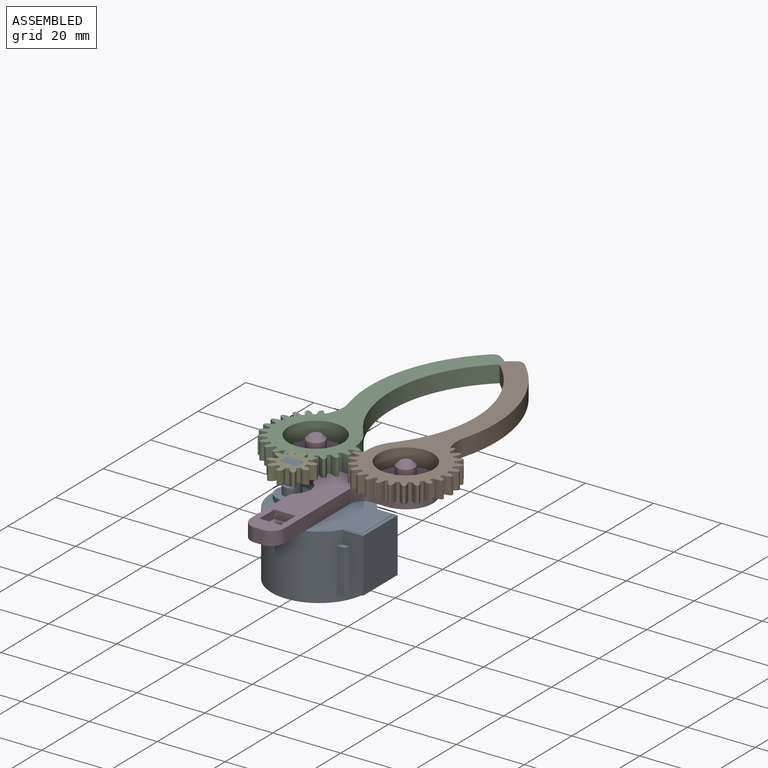
[diagram: assembled view]
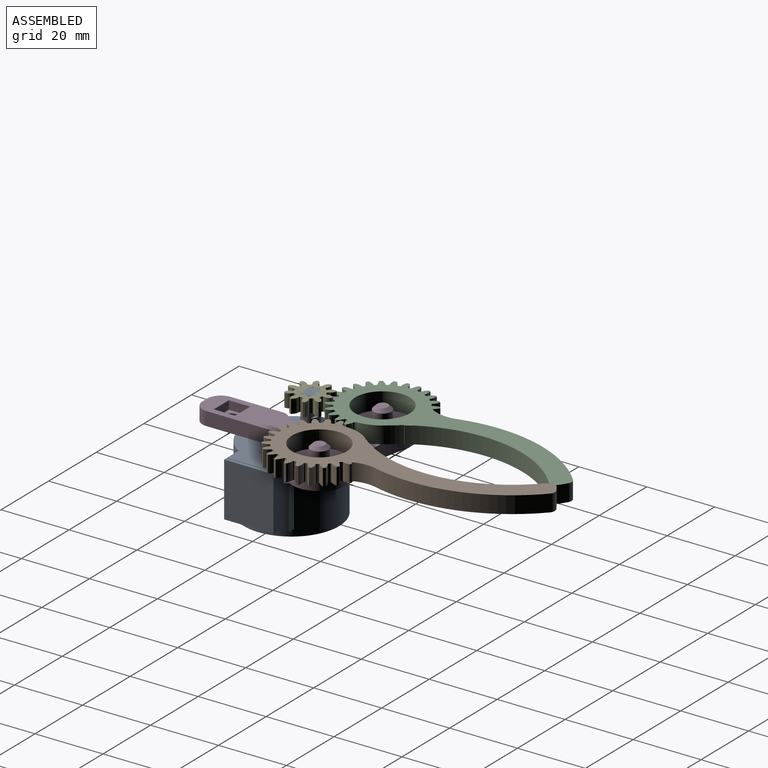
[diagram: assembled view, second angle]
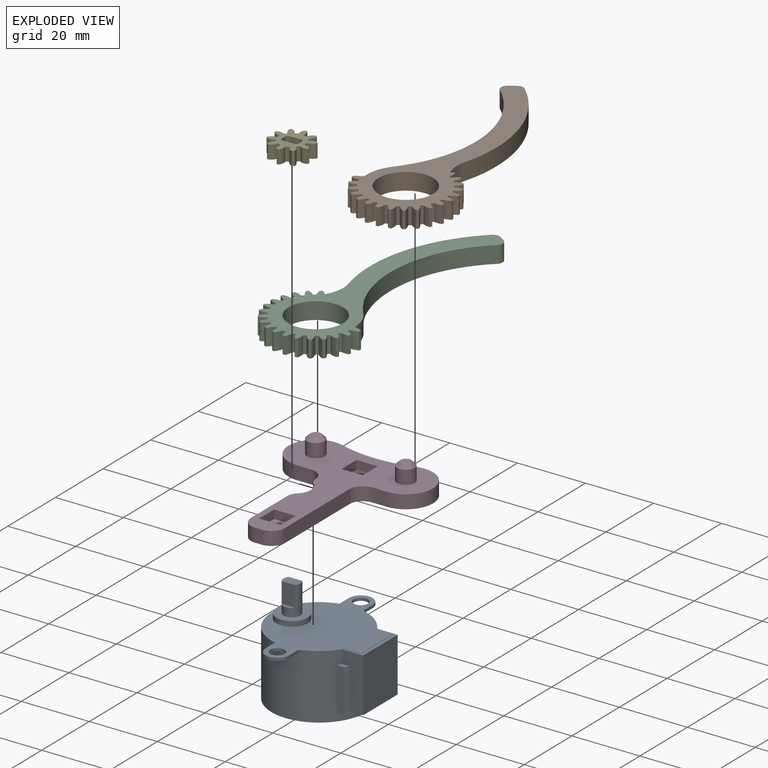
[diagram: exploded view]
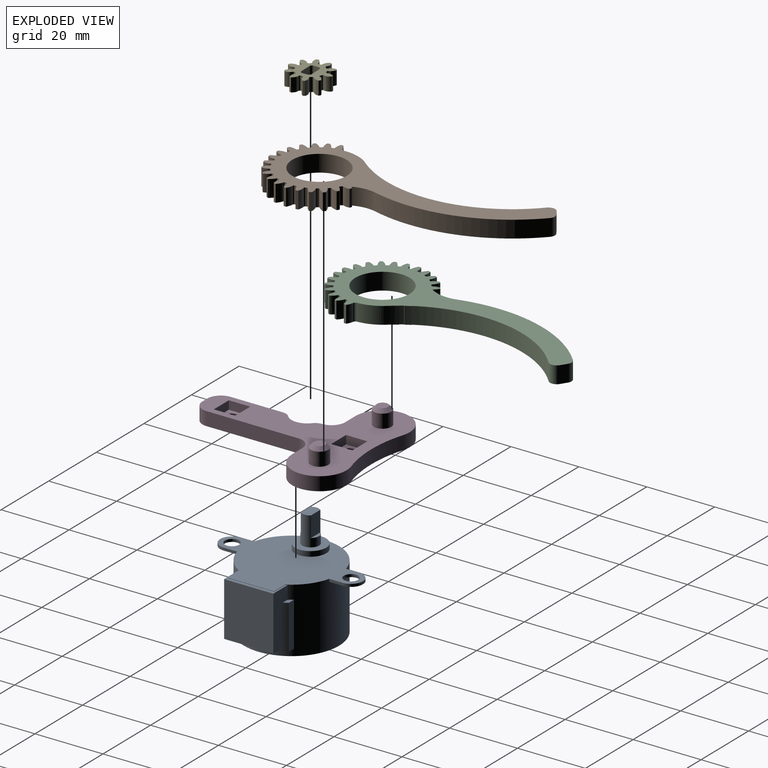
[diagram: exploded view, second angle]
FCSTD DOCUMENT  (FreeCAD 1.0R39109 (Git))
Label: Canapince
License: All rights reserved
LicenseURL: https://en.wikipedia.org/wiki/All_rights_reserved
objects: App::FeaturePython×7, App::Link×5, Assembly::JointGroup×1, Assembly::AssemblyObject×1
EXTERNAL_REF file=PinceV1.FCStd obj=Body
EXTERNAL_REF file=28BYJ-48-stepper.FCStd obj=Part
EXTERNAL_REF file=pignon.FCStd obj=Body
EXTERNAL_REF file=BrasV1_L.FCStd obj=Body
EXTERNAL_REF file=BrasV1_R.FCStd obj=Body

FEATURE [App::Link] partie_fixe
  LinkedObject = -> <external PinceV1.FCStd>#Body
FEATURE [App::FeaturePython] GroundedJoint  # Assembly grounded joint (typed FeaturePython)
  ObjectToGround = -> partie_fixe
FEATURE [App::Link] _8BYJ_48  label="28BYJ_48"
  LinkPlacement = pos=(-2.7e-15,-60.5051,7e-16) rot=(0.57735,0.57735,-0.57735;4.18879rad)
  LinkedObject = -> <external 28BYJ-48-stepper.FCStd>#Part
  Placement = pos=(-2.7e-15,-60.5051,7e-16) rot=(0.57735,0.57735,-0.57735;4.18879rad)
FEATURE [App::Link] pignon
  LinkPlacement = pos=(-8,-60.5051,10) rot=(0.696444,0.717611,0;3.14159rad)
  LinkedObject = -> <external pignon.FCStd>#Body
  Placement = pos=(-8,-60.5051,10) rot=(0.696444,0.717611,0;3.14159rad)
FEATURE [App::FeaturePython] Joint001  label="Revolute001"  # Assembly joint (typed FeaturePython)
  Activated = true
  AngleMax = 90
  AngleMin = 90
  Detach1 = false
  Detach2 = false
  Distance = 0
  Distance2 = 0
  EnableAngleMax = true
  EnableAngleMin = true
  EnableLengthMax = false
  EnableLengthMin = false
  JointType = 1 (Revolute)
  LengthMax = 0
  LengthMin = 0
  Placement1 = pos=(0,-78.0051,0) rot=(0,0,1;0rad)
  Placement2 = pos=(-17.5,0,-1e-16) rot=(1,0,0;1.5708rad)
  Reference1 = -> Assembly [partie_fixe.Edge79,partie_fixe.Edge79]
  Reference2 = -> Assembly [_8BYJ_48.Body.Edge34,_8BYJ_48.Body.Edge34]
FEATURE [App::FeaturePython] Joint004  label="Revolute003"  # Assembly joint (typed FeaturePython)
  Activated = true
  AngleMax = 0
  AngleMin = 0
  Detach1 = false
  Detach2 = false
  Distance = 0
  Distance2 = 0
  EnableAngleMax = false
  EnableAngleMin = false
  EnableLengthMax = false
  EnableLengthMin = false
  JointType = 1 (Revolute)
  LengthMax = 0
  LengthMin = 0
  Placement1 = pos=(0,-10,8) rot=(1,0,0;1.5708rad)
  Reference1 = -> Assembly [_8BYJ_48.Body.Edge12,_8BYJ_48.Body.Edge12]
  Reference2 = -> Assembly [pignon.Face1,pignon.Face1]
FEATURE [App::Link] bras_L
  LinkPlacement = pos=(-24.3939,-12.6087,6.5) rot=(-0.28418,0.958771,0;3.14159rad)
  LinkedObject = -> <external BrasV1_L.FCStd>#Body
  Placement = pos=(-24.3939,-12.6087,6.5) rot=(-0.28418,0.958771,0;3.14159rad)
FEATURE [App::Link] bras_R
  LinkPlacement = pos=(24.3835,-12.5958,6.5) rot=(0,0,-1;0.575959rad)
  LinkedObject = -> <external BrasV1_R.FCStd>#Body
  Placement = pos=(24.3835,-12.5958,6.5) rot=(0,0,-1;0.575959rad)
FEATURE [App::FeaturePython] Joint  label="Pivot"  # Assembly joint (typed FeaturePython)
  Activated = true
  AngleMax = 33
  AngleMin = -75
  Detach1 = false
  Detach2 = false
  Distance = 0
  Distance2 = 0
  EnableAngleMax = true
  EnableAngleMin = true
  EnableLengthMax = false
  EnableLengthMin = false
  JointType = 1 (Revolute)
  LengthMax = 0
  LengthMin = 0
  Placement1 = pos=(-15,-46,-2.5) rot=(0,0,1;0rad)
  Placement2 = pos=(-13.25,-43.0051,4) rot=(0,0,1;0rad)
  Reference1 = -> Assembly [bras_R.Edge290,bras_R.Edge290]
  Reference2 = -> Assembly [partie_fixe.Edge21,partie_fixe.Edge21]
FEATURE [App::FeaturePython] Joint005  label="Pivot001"  # Assembly joint (typed FeaturePython)
  Activated = true
  AngleMax = 10
  AngleMin = -10
  Detach1 = false
  Detach2 = false
  Distance = 0
  Distance2 = 0
  EnableAngleMax = false
  EnableAngleMin = false
  EnableLengthMax = false
  EnableLengthMin = false
  JointType = 1 (Revolute)
  LengthMax = 0
  LengthMin = 0
  Placement1 = pos=(-15,-46,2.5) rot=(0,0,1;0rad)
  Placement2 = pos=(13.25,-43.0051,4) rot=(0,0,1;0rad)
  Reference1 = -> Assembly [bras_L.Pocket001.Edge662,bras_L.Pocket001.Edge662]
  Reference2 = -> Assembly [partie_fixe.Fillet001.Edge26,partie_fixe.Fillet001.Edge26]
FEATURE [App::FeaturePython] Joint007  label="Courroie001"  # Assembly joint (typed FeaturePython)
  Activated = true
  AngleMax = 10
  AngleMin = -10
  Detach1 = false
  Detach2 = false
  Distance = 10
  Distance2 = 10
  EnableAngleMax = false
  EnableAngleMin = false
  EnableLengthMax = false
  EnableLengthMin = false
  JointType = 12 (Belt)
  LengthMax = 0
  LengthMin = 0
  Placement1 = pos=(-15,-46,2.5) rot=(0,0,1;0rad)
  Placement2 = pos=(-15,-46,-2.5) rot=(0,0,1;0rad)
  Reference1 = -> Assembly [bras_R.Pocket001.Edge686,bras_R.Pocket001.Edge686]
  Reference2 = -> Assembly [bras_L.Pocket001.Edge289,bras_L.Pocket001.Edge289]
FEATURE [App::FeaturePython] Joint008  label="Courroie"  # Assembly joint (typed FeaturePython)
  Activated = true
  AngleMax = 20
  AngleMin = -20
  Detach1 = false
  Detach2 = false
  Distance = 10
  Distance2 = 26
  EnableAngleMax = false
  EnableAngleMin = false
  EnableLengthMax = false
  EnableLengthMin = false
  JointType = 12 (Belt)
  LengthMax = 9
  LengthMin = 0
  Placement2 = pos=(-15,-46,2.5) rot=(0,0,1;0rad)
  Reference1 = -> Assembly [pignon.Fillet.Face1,pignon.Fillet.Face1]
  Reference2 = -> Assembly [bras_R.Pocket001.Edge686,bras_R.Pocket001.Edge686]
FEATURE [Assembly::JointGroup] Joints
  Group = -> [GroundedJoint,Joint001,Joint004,Joint,Joint005,Joint007,Joint008]
FEATURE [Assembly::AssemblyObject] Assembly
  Group = -> [Joints,partie_fixe,GroundedJoint,_8BYJ_48,pignon,Joint001,Joint004,bras_L,bras_R,Joint,Joint005,Joint007,Joint008]
  Origin = -> Origin
  Placement = pos=(0,0,154) rot=(0,0,1;0rad)
  Type = Assembly

RESOLVED EXTERNAL PARTS (link-assembly join: the EXTERNAL_REF files above that resolve inside this repo's crawl, each included once):
---- part 28BYJ-48-stepper.FCStd = doc fcstd_d44b789bbfa6 ----
FCSTD DOCUMENT  (FreeCAD 1.0R39109 (Git))
Label: 28BYJ-48-stepper
License: All rights reserved
LicenseURL: http://en.wikipedia.org/wiki/All_rights_reserved
objects: Sketcher::SketchObject×9, PartDesign::Pad×8, PartDesign::CoordinateSystem×4, PartDesign::Mirrored×2, PartDesign::Plane×1, PartDesign::Pocket×1, PartDesign::Body×1, App::Part×1
note: 55 computed .brp shape members not serialized (recipe doc carries the construction recipe); baked Part::Feature solids carry a one-line shape summary decoded from their .brp

FEATURE [Sketcher::SketchObject] Sketch
  ArcFitTolerance = 0
  AttachmentSupport = -> [XZ_Plane001]
  FullyConstrained = true
  MakeInternals = false
  MapMode = 5
  Placement = pos=(0,0,0) rot=(1,0,0;1.5708rad)
  sketch-geometry (1):
    g0: Circle CenterX=0 CenterY=0 CenterZ=0 NormalX=0 NormalY=0 NormalZ=1 AngleXU=0 Radius=14
  constraints (2):
    c: Coincident(g0,g-1)
    c: Diameter(g0) = 28
FEATURE [PartDesign::Pad] Pad
  Direction = (0,-1,2e-16)
  Length = 19
  Length2 = 100
  Placement = pos=(0,0,0) rot=(1,0,0;1.5708rad)
  Profile = -> Sketch
  ReferenceAxis = -> Sketch [N_Axis]
  Reversed = true
  Suppressed = false
  Type = 0
FEATURE [Sketcher::SketchObject] Sketch001
  ArcFitTolerance = 0
  AttachmentSupport = -> [Pad]
  ExternalGeometry = -> [Pad]
  FullyConstrained = true
  MakeInternals = false
  MapMode = 5
  Placement = pos=(0,0,0) rot=(1,0,0;1.5708rad)
  sketch-geometry (4):
    g0: LineSegment StartX=-7.25 StartY=-11.9765 StartZ=0 EndX=7.25 EndY=-11.9765 EndZ=0
    g1: LineSegment StartX=7.25 StartY=-11.9765 StartZ=0 EndX=7.25 EndY=-18 EndZ=0
    g2: LineSegment StartX=7.25 StartY=-18 StartZ=0 EndX=-7.25 EndY=-18 EndZ=0
    g3: LineSegment StartX=-7.25 StartY=-18 StartZ=0 EndX=-7.25 EndY=-11.9765 EndZ=0
  constraints (11):
    c: Coincident(g0,g1)
    c: Coincident(g1,g2)
    c: Coincident(g2,g3)
    c: Coincident(g3,g0)
    c: Horizontal(g0)
    c: Vertical(g1)
    c: Vertical(g3)
    c: PointOnObject(g0,g-3)
    c: Symmetric(g2,g1,g-2)
    c: DistanceX(g2,g2) = 14.5
    c: DistanceY(g1,g-1) = 18
FEATURE [PartDesign::Pad] Pad001
  BaseFeature = -> Pad
  Direction = (0,-1,2e-16)
  Length = 16
  Length2 = 100
  Placement = pos=(0,0,0) rot=(1,0,0;1.5708rad)
  Profile = -> Sketch001
  ReferenceAxis = -> Sketch001 [N_Axis]
  Refine = true
  Reversed = true
  Suppressed = false
  Type = 0
FEATURE [Sketcher::SketchObject] Sketch002
  ArcFitTolerance = 0
  AttachmentSupport = -> [Pad001]
  ExternalGeometry = -> [Pad001]
  FullyConstrained = true
  MakeInternals = false
  MapMode = 5
  Placement = pos=(0,0,0) rot=(1,0,0;1.5708rad)
  sketch-geometry (5):
    g0: Circle CenterX=-17.5 CenterY=-1e-16 CenterZ=0 NormalX=0 NormalY=0 NormalZ=1 AngleXU=0 Radius=2.1
    g1: ArcOfCircle CenterX=-17.5 CenterY=-1e-16 CenterZ=0 NormalX=0 NormalY=0 NormalZ=1 AngleXU=0 Radius=3.5 StartAngle=1.5708 EndAngle=4.71239
    g2: LineSegment StartX=-17.5 StartY=3.5 StartZ=0 EndX=-13.5554 EndY=3.5 EndZ=0
    g3: LineSegment StartX=-13.5554 StartY=3.5 StartZ=0 EndX=-13.5554 EndY=-3.5 EndZ=0
    g4: LineSegment StartX=-13.5554 StartY=-3.5 StartZ=0 EndX=-17.5 EndY=-3.5 EndZ=0
  constraints (14):
    c: Coincident(g1,g0)
    c: Symmetric(g1,g1,g-1)
    c: Vertical(g1,g0)
    c: Coincident(g2,g1)
    c: Horizontal(g2)
    c: Coincident(g3,g2)
    c: Vertical(g3)
    c: Coincident(g4,g3)
    c: Coincident(g4,g1)
    c: Horizontal(g4)
    c: PointOnObject(g2,g-3)
    c: Diameter(g0) = 4.2
    c: Radius(g1) = 3.5
    c: DistanceX(g0,g-1) = 17.5
FEATURE [PartDesign::Pad] Pad002
  BaseFeature = -> Pad001
  Direction = (0,-1,2e-16)
  Length = 0.8
  Length2 = 100
  Placement = pos=(0,0,0) rot=(1,0,0;1.5708rad)
  Profile = -> Sketch002
  ReferenceAxis = -> Sketch002 [N_Axis]
  Refine = true
  Reversed = true
  Suppressed = false
  Type = 0
FEATURE [PartDesign::Mirrored] Mirrored
  BaseFeature = -> Pad002
  MirrorPlane = -> Sketch002 [V_Axis]
  Originals = -> [Pad002]
  Placement = pos=(0,0,0) rot=(1,0,0;1.5708rad)
  Refine = true
  Suppressed = false
  TransformMode = 0
FEATURE [Sketcher::SketchObject] Sketch003
  ArcFitTolerance = 0
  AttachmentSupport = -> [Mirrored]
  FullyConstrained = true
  MakeInternals = false
  MapMode = 5
  Placement = pos=(0,0,0) rot=(1,0,0;1.5708rad)
  sketch-geometry (1):
    g0: Circle CenterX=0 CenterY=8 CenterZ=0 NormalX=0 NormalY=0 NormalZ=1 AngleXU=0 Radius=4.6
  constraints (3):
    c: PointOnObject(g0,g-2)
    c: Diameter(g0) = 9.2
    c: DistanceY(g-1,g0) = 8
FEATURE [PartDesign::Pad] Pad003
  BaseFeature = -> Mirrored
  Direction = (0,-1,2e-16)
  Length = 1.5
  Length2 = 100
  Placement = pos=(0,0,0) rot=(1,0,0;1.5708rad)
  Profile = -> Sketch003
  ReferenceAxis = -> Sketch003 [N_Axis]
  Suppressed = false
  Type = 0
FEATURE [Sketcher::SketchObject] Sketch004
  ArcFitTolerance = 0
  AttachmentSupport = -> [Pad003]
  ExternalGeometry = -> [Pad003]
  FullyConstrained = true
  MakeInternals = false
  MapMode = 5
  Placement = pos=(0,-1.5,0) rot=(1,0,0;1.5708rad)
  sketch-geometry (1):
    g0: Circle CenterX=0 CenterY=8 CenterZ=0 NormalX=0 NormalY=0 NormalZ=1 AngleXU=0 Radius=2.5
  constraints (2):
    c: Coincident(g0,g-3)
    c: Diameter(g0) = 5
FEATURE [PartDesign::Pad] Pad004
  BaseFeature = -> Pad003
  Direction = (0,-1,2e-16)
  Length = 2.5
  Length2 = 100
  Placement = pos=(0,0,0) rot=(1,0,0;1.5708rad)
  Profile = -> Sketch004
  ReferenceAxis = -> Sketch004 [N_Axis]
  Suppressed = false
  Type = 0
FEATURE [Sketcher::SketchObject] Sketch005
  ArcFitTolerance = 0
  AttachmentSupport = -> [Pad004]
  ExternalGeometry = -> [Pad004]
  FullyConstrained = true
  MakeInternals = false
  MapMode = 5
  Placement = pos=(0,-4,0) rot=(1,0,0;1.5708rad)
  sketch-geometry (4):
    g0: LineSegment StartX=-1.5 StartY=10 StartZ=0 EndX=-1.5 EndY=6 EndZ=0
    g1: LineSegment StartX=1.5 StartY=10 StartZ=0 EndX=1.5 EndY=6 EndZ=0
    g2: ArcOfCircle CenterX=0 CenterY=8 CenterZ=0 NormalX=0 NormalY=0 NormalZ=1 AngleXU=0 Radius=2.5 StartAngle=0.927295 EndAngle=2.2143
    g3: ArcOfCircle CenterX=0 CenterY=8 CenterZ=0 NormalX=0 NormalY=0 NormalZ=1 AngleXU=0 Radius=2.5 StartAngle=4.06889 EndAngle=5.35589
  constraints (12):
    c: PointOnObject(g0,g-3)
    c: PointOnObject(g0,g-3)
    c: Vertical(g0)
    c: Vertical(g1)
    c: Coincident(g2,g-3)
    c: Coincident(g2,g0)
    c: Coincident(g2,g1)
    c: Coincident(g3,g2)
    c: Coincident(g3,g0)
    c: Coincident(g3,g1)
    c: DistanceX(g0,g1) = 3
    c: Horizontal(g0,g1)
FEATURE [PartDesign::Pad] Pad005
  BaseFeature = -> Pad004
  Direction = (0,-1,2e-16)
  Length = 6
  Length2 = 100
  Placement = pos=(0,0,0) rot=(1,0,0;1.5708rad)
  Profile = -> Sketch005
  ReferenceAxis = -> Sketch005 [N_Axis]
  Refine = true
  Suppressed = false
  Type = 0
FEATURE [PartDesign::Plane] DatumPlane
  AttachmentOffset = pos=(0,0,-4) rot=(0,0,1;0rad)
  AttachmentSupport = -> [Pad005]
  Length = 60
  MapMode = 2
  Placement = pos=(0,4,-9e-16) rot=(1,0,0;1.5708rad)
  ResizeMode = 0
  Width = 60
FEATURE [Sketcher::SketchObject] Sketch006
  ArcFitTolerance = 0
  AttachmentSupport = -> [DatumPlane]
  ExternalGeometry = -> [Pad005]
  FullyConstrained = true
  MakeInternals = false
  MapMode = 5
  Placement = pos=(0,4,-9e-16) rot=(1,0,0;1.5708rad)
  sketch-geometry (4):
    g0: ArcOfCircle CenterX=0 CenterY=0 CenterZ=0 NormalX=0 NormalY=0 NormalZ=1 AngleXU=0 Radius=15.7659 StartAngle=4.14297 EndAngle=4.23456
    g1: LineSegment StartX=-7.25 StartY=-14 StartZ=0 EndX=-7.25 EndY=-11.9765 EndZ=0
    g2: LineSegment StartX=-8.5 StartY=-13.2783 StartZ=0 EndX=-8.5 EndY=-11.1243 EndZ=0
    g3: ArcOfCircle CenterX=0 CenterY=0 CenterZ=0 NormalX=0 NormalY=0 NormalZ=1 AngleXU=0 Radius=14 StartAngle=4.05993 EndAngle=4.16804
  constraints (11):
    c: Coincident(g0,g-1)
    c: Coincident(g1,g-4)
    c: Coincident(g2,g0)
    c: Vertical(g2)
    c: Coincident(g3,g0)
    c: Coincident(g3,g1)
    c: Coincident(g3,g2)
    c: Coincident(g1,g0)
    c: DistanceX(g2,g0) = 8.5
    c: Vertical(g1)
    c: DistanceY(g-3,g0) = 4
FEATURE [PartDesign::Pad] Pad006
  BaseFeature = -> Pad005
  Direction = (0,-1,2e-16)
  Length = 10
  Length2 = 100
  Placement = pos=(0,0,0) rot=(1,0,0;1.5708rad)
  Profile = -> Sketch006
  ReferenceAxis = -> Sketch006 [N_Axis]
  Refine = true
  Suppressed = false
  Type = 3
  UpToFace = -> Pad005 [Face11]
FEATURE [PartDesign::Mirrored] Mirrored001
  BaseFeature = -> Pad006
  MirrorPlane = -> Sketch006 [V_Axis]
  Originals = -> [Pad006]
  Placement = pos=(0,0,0) rot=(1,0,0;1.5708rad)
  Refine = true
  Suppressed = false
  TransformMode = 0
FEATURE [Sketcher::SketchObject] Sketch007
  ArcFitTolerance = 0
  AttachmentSupport = -> [Mirrored001]
  ExternalGeometry = -> [Mirrored001]
  FullyConstrained = true
  MakeInternals = false
  MapMode = 5
  Placement = pos=(0,16,0) rot=(-1,0,0;1.5708rad)
  sketch-geometry (4):
    g0: ArcOfCircle CenterX=0 CenterY=0 CenterZ=0 NormalX=0 NormalY=0 NormalZ=1 AngleXU=0 Radius=14 StartAngle=0.918336 EndAngle=2.22326
    g1: ArcOfCircle CenterX=0 CenterY=0 CenterZ=0 NormalX=0 NormalY=0 NormalZ=1 AngleXU=0 Radius=15.7659 StartAngle=1.00138 EndAngle=2.14021
    g2: LineSegment StartX=-8.5 StartY=13.2783 StartZ=0 EndX=-8.5 EndY=11.1243 EndZ=0
    g3: LineSegment StartX=8.5 StartY=13.2783 StartZ=0 EndX=8.5 EndY=11.1243 EndZ=0
  constraints (10):
    c: Coincident(g0,g-1)
    c: Coincident(g0,g-3)
    c: Coincident(g1,g0)
    c: Coincident(g1,g-4)
    c: Coincident(g2,g1)
    c: Coincident(g2,g0)
    c: Coincident(g3,g1)
    c: Coincident(g3,g0)
    c: Vertical(g3)
    c: Horizontal(g1,g1)
FEATURE [PartDesign::Pad] Pad007
  BaseFeature = -> Mirrored001
  Direction = (0,1,2e-16)
  Length = 1
  Length2 = 100
  Placement = pos=(0,0,0) rot=(1,0,0;1.5708rad)
  Profile = -> Sketch007
  ReferenceAxis = -> Sketch007 [N_Axis]
  Refine = true
  Suppressed = false
  Type = 0
FEATURE [Sketcher::SketchObject] Sketch008
  ArcFitTolerance = 0
  AttachmentSupport = -> [Pad007]
  ExternalGeometry = -> [Pad007]
  FullyConstrained = false
  MakeInternals = false
  MapMode = 5
  Placement = pos=(0,0,0) rot=(1,0,0;1.5708rad)
  sketch-geometry (8):
    g0: LineSegment StartX=-7.25 StartY=-11.9765 StartZ=0 EndX=-7.25 EndY=-18 EndZ=0
    g1: LineSegment StartX=7.25 StartY=-18 StartZ=0 EndX=-7.25 EndY=-18 EndZ=0
    g2: LineSegment StartX=7.25 StartY=-18 StartZ=0 EndX=7.25 EndY=-11.9765 EndZ=0
    g3: ArcOfCircle CenterX=0 CenterY=0 CenterZ=0 NormalX=0 NormalY=0 NormalZ=1 AngleXU=0 Radius=14 StartAngle=4.16804 EndAngle=4.20929
    g4: LineSegment StartX=-6.75 StartY=-12.2653 StartZ=0 EndX=-6.75 EndY=-17 EndZ=0
    g5: LineSegment StartX=-6.75 StartY=-17 StartZ=0 EndX=6.75 EndY=-17 EndZ=0
    g6: LineSegment StartX=6.75 StartY=-17 StartZ=0 EndX=6.75 EndY=-12.2653 EndZ=0
    g7: ArcOfCircle CenterX=-1.15416 CenterY=1.9985 CenterZ=0 NormalX=0 NormalY=0 NormalZ=1 AngleXU=0 Radius=16.3074 StartAngle=5.21841 EndAngle=5.25381
  constraints (19):
    c: Coincident(g0,g-3)
    c: Coincident(g0,g-5)
    c: Coincident(g1,g-6)
    c: Coincident(g1,g0)
    c: Coincident(g2,g1)
    c: Coincident(g2,g-4)
    c: Coincident(g3,g-1)
    c: Coincident(g3,g0)
    c: Coincident(g7,g2)
    c: Vertical(g4)
    c: Coincident(g5,g4)
    c: Horizontal(g5)
    c: Coincident(g6,g5)
    c: Symmetric(g4,g6,g-2)
    c: Vertical(g6)
    c: DistanceX(g0,g4) = 0.5
    c: DistanceY(g0,g4) = 1
    c: Coincident(g3,g4)
    c: Coincident(g7,g6)
FEATURE [PartDesign::Pocket] Pocket
  BaseFeature = -> Pad007
  Direction = (0,1,-2e-16)
  Length = 0.1
  Length2 = 100
  Placement = pos=(0,0,0) rot=(1,0,0;1.5708rad)
  Profile = -> Sketch008
  Suppressed = false
  Type = 0
FEATURE [PartDesign::Body] Body  label="28BYJ_48_StepperBody"
  AllowCompound = false
  Group = -> [Sketch,Pad,Sketch001,Pad001,Sketch002,Pad002,Mirrored,Sketch003,Pad003,Sketch004,Pad004,Sketch005,Pad005,DatumPlane,Sketch006,Pad006,Mirrored001,Sketch007,Pad007,Sketch008,Pocket]
  Origin = -> Origin001
  Tip = -> Pocket
FEATURE [PartDesign::CoordinateSystem] LCS_Mounting_Housing_Center
  AttacherType = Attacher::AttachEngine3D
  AttachmentSupport = -> [Pocket]
  MapMode = 11
  Placement = pos=(0,0.8,-4e-16) rot=(0.480384,0.620174,-0.620174;2.24593rad)
FEATURE [PartDesign::CoordinateSystem] LCS_Shaft_top_center
  AttacherType = Attacher::AttachEngine3D
  AttachmentOffset = pos=(0,0,8.5) rot=(0,0,1;0rad)
  AttachmentSupport = -> [Pocket]
  MapMode = 11
  Placement = pos=(0,-10,8) rot=(0.57735,-0.57735,0.57735;2.0944rad)
FEATURE [PartDesign::CoordinateSystem] LCS_Mounting_Hole1
  AttacherType = Attacher::AttachEngine3D
  AttachmentSupport = -> [Pocket]
  MapMode = 11
  Placement = pos=(-17.5,0.8,-1e-16) rot=(0.57735,-0.57735,0.57735;2.0944rad)
FEATURE [PartDesign::CoordinateSystem] LCS_Mounting_Hole2
  AttacherType = Attacher::AttachEngine3D
  AttachmentOffset = pos=(0,0,0) rot=(1,0,0;3.14159rad)
  AttachmentSupport = -> [Pocket]
  MapMode = 11
  Placement = pos=(17.5,0.8,-1e-16) rot=(-0.57735,0.57735,-0.57735;4.18879rad)
FEATURE [App::Part] Part  label="28BYJ_48"
  Group = -> [Body,LCS_Mounting_Housing_Center,LCS_Shaft_top_center,LCS_Mounting_Hole1,LCS_Mounting_Hole2]
  Origin = -> Origin
---- part BrasV1_L.FCStd = doc fcstd_e81e26ba85e7 ----
FCSTD DOCUMENT  (FreeCAD 1.0R39109 (Git))
Label: BrasV1_L
License: All rights reserved
LicenseURL: https://en.wikipedia.org/wiki/All_rights_reserved
objects: Sketcher::SketchObject×3, PartDesign::Pad×2, PartDesign::Fillet×2, PartDesign::Pocket×2, PartDesign::Chamfer×1, PartDesign::Line×1, Part::Part2DObjectPython×1, Mesh::Feature×1, PartDesign::CoordinateSystem×1, PartDesign::Body×1
note: 31 computed .brp shape members not serialized (recipe doc carries the construction recipe); baked Part::Feature solids carry a one-line shape summary decoded from their .brp

FEATURE [Sketcher::SketchObject] Sketch
  ArcFitTolerance = 0
  AttachmentSupport = -> [XY_Plane]
  FullyConstrained = true
  MakeInternals = false
  MapMode = 5
  sketch-geometry (5):
    g0: ArcOfCircle CenterX=0 CenterY=0 CenterZ=0 NormalX=0 NormalY=0 NormalZ=1 AngleXU=0 Radius=37 StartAngle=2.8113 EndAngle=4.39717
    g1: Circle CenterX=-15 CenterY=-46 CenterZ=0 NormalX=0 NormalY=0 NormalZ=1 AngleXU=0 Radius=8
    g2: ArcOfCircle CenterX=-15 CenterY=-46 CenterZ=0 NormalX=0 NormalY=0 NormalZ=1 AngleXU=0 Radius=11.3839 StartAngle=2.22683 EndAngle=7.53877
    g3: ArcOfCircle CenterX=0 CenterY=0 CenterZ=0 NormalX=0 NormalY=0 NormalZ=1 AngleXU=0 Radius=43 StartAngle=2.85877 EndAngle=4.17683
    g4: LineSegment StartX=-41.2916 StartY=12 StartZ=0 EndX=-35 EndY=12 EndZ=0
  constraints (14):
    c: Coincident(g0,g-1)
    c: Radius(g0) = 37
    c: Distance(g0,g-2) = 35
    c: Diameter(g1) = 16
    c: Distance(g1,g-2) = 15
    c: Coincident(g2,g1)
    c: Tangent(g2,g0) = 1.5708
    c: Coincident(g3,g0)
    c: Coincident(g2,g3)
    c: Radius(g3) = 43
    c: Coincident(g4,g3)
    c: Coincident(g4,g0)
    c: Horizontal(g4)
    c: Distance(g1,g-1) = 46
FEATURE [PartDesign::Pad] Pad
  Direction = (0,0,1)
  Length = 5
  Length2 = 10
  Midplane = true
  Profile = -> Sketch
  ReferenceAxis = -> Sketch [N_Axis]
  Suppressed = false
  Type = 0
FEATURE [PartDesign::Fillet] Fillet
  Base = -> Pad [Edge8]
  BaseFeature = -> Pad
  Radius = 10
  SupportTransform = false
  Suppressed = false
  UseAllEdges = false
FEATURE [PartDesign::Fillet] Fillet001
  Base = -> Fillet [Edge17,Edge12]
  BaseFeature = -> Fillet
  Radius = 2
  SupportTransform = false
  Suppressed = false
  UseAllEdges = false
FEATURE [PartDesign::Chamfer] Chamfer
  Angle = 45
  Base = -> Fillet001 [Edge24,Edge8]
  BaseFeature = -> Fillet001
  ChamferType = 0
  FlipDirection = false
  Size = 0.8
  Size2 = 1
  SupportTransform = false
  Suppressed = false
  UseAllEdges = false
FEATURE [PartDesign::Line] DatumLine
  AttacherType = Attacher::AttachEngineLine
  AttachmentSupport = -> [Chamfer]
  Length = 20
  MapMode = 42
  Placement = pos=(-15,-46,-1e-16) rot=(0,0,1;0rad)
  ResizeMode = 0
FEATURE [Part::Part2DObjectPython] InvoluteGear  # Draft 2D object (typed FeaturePython)
  AddendumCoefficient = 1
  DedendumCoefficient = 1.25
  ExternalGear = true
  HighPrecision = true
  Modules = 1
  NumberOfTeeth = 26
  Placement = pos=(-15,-46,0) rot=(0,0,1;0.122173rad)
  PressureAngle = 20
  ProfileShiftCoefficient = 0
  RootFilletCoefficient = 0.38
FEATURE [PartDesign::Pad] Pad001
  BaseFeature = -> Chamfer
  Direction = (0,0,1)
  Length = 5
  Length2 = 10
  Midplane = true
  Profile = -> InvoluteGear
  ReferenceAxis = -> InvoluteGear [N_Axis]
  Suppressed = false
  Type = 0
FEATURE [Sketcher::SketchObject] Sketch001
  ArcFitTolerance = 0
  AttachmentSupport = -> [Pad001]
  FullyConstrained = false
  MakeInternals = false
  MapMode = 5
  Placement = pos=(0,0,2.5) rot=(0,0,1;0rad)
  sketch-geometry (1):
    g0: Circle CenterX=-15 CenterY=-46 CenterZ=0 NormalX=0 NormalY=0 NormalZ=1 AngleXU=0 Radius=8
  constraints (1):
    c: Diameter(g0) = 16
FEATURE [PartDesign::Pocket] Pocket
  BaseFeature = -> Pad001
  Direction = (0,0,-1)
  Length = 5
  Length2 = 5
  Profile = -> Sketch001
  ReferenceAxis = -> Sketch001 [N_Axis]
  Suppressed = false
  Type = 1
FEATURE [Sketcher::SketchObject] Sketch002
  ArcFitTolerance = 0
  AttachmentSupport = -> [Pocket]
  ExternalGeometry = -> [Pocket]
  FullyConstrained = true
  MakeInternals = false
  MapMode = 5
  Placement = pos=(0,0,2.5) rot=(0,0,1;0rad)
  sketch-geometry (4):
    g0: ArcOfCircle CenterX=-15 CenterY=-46 CenterZ=0 NormalX=0 NormalY=0 NormalZ=1 AngleXU=0 Radius=11.4 StartAngle=0.488692 EndAngle=1.25558
    g1: ArcOfCircle CenterX=0 CenterY=0 CenterZ=0 NormalX=0 NormalY=0 NormalZ=1 AngleXU=0 Radius=36.9839 StartAngle=4.1662 EndAngle=4.39717
    g2: ArcOfCircle CenterX=-15 CenterY=-46 CenterZ=0 NormalX=0 NormalY=0 NormalZ=1 AngleXU=0 Radius=15 StartAngle=0.488692 EndAngle=1.85533
    g3: LineSegment StartX=-4.9344 StartY=-40.648 StartZ=0 EndX=-1.75579 EndY=-38.9579 EndZ=0
  constraints (11):
    c: Coincident(g1,g-1)
    c: Coincident(g2,g0)
    c: Coincident(g2,g1)
    c: Coincident(g3,g0)
    c: Coincident(g3,g2)
    c: Radius(g0) = 11.4
    c: Tangent(g1,g0) = 1.5708
    c: Coincident(g0,g-3)
    c: Radius(g2) = 15
    c: Perpendicular(g0,g3)
    c: Angle(g-1,g3) = 0.488692
FEATURE [PartDesign::Pocket] Pocket001
  BaseFeature = -> Pocket
  Direction = (0,0,-1)
  Length = 5
  Length2 = 5
  Profile = -> Sketch002
  ReferenceAxis = -> Sketch002 [N_Axis]
  Suppressed = false
  Type = 0
FEATURE [Mesh::Feature] Mesh  label="Corps (Meshed)"
FEATURE [PartDesign::CoordinateSystem] LCS_1
  AttacherType = Attacher::AttachEngine3D
  AttachmentSupport = -> [Pocket001]
  MapMode = 11
  Placement = pos=(-15,-46,2.5) rot=(0,0,1;1.5708rad)
FEATURE [PartDesign::Body] Body  label="bras_L"
  AllowCompound = false
  Group = -> [Sketch,Pad,Fillet,Fillet001,Chamfer,DatumLine,InvoluteGear,Pad001,Sketch001,Pocket,Sketch002,Pocket001,LCS_1]
  Origin = -> Origin
  Tip = -> Pocket001
---- part BrasV1_R.FCStd = doc fcstd_1310c8fe5d31 ----
FCSTD DOCUMENT  (FreeCAD 1.0R39109 (Git))
Label: BrasV1_R
License: All rights reserved
LicenseURL: https://en.wikipedia.org/wiki/All_rights_reserved
objects: Sketcher::SketchObject×3, PartDesign::Pad×2, PartDesign::Fillet×2, PartDesign::Pocket×2, PartDesign::Chamfer×1, PartDesign::Line×1, Part::Part2DObjectPython×1, Mesh::Feature×1, PartDesign::CoordinateSystem×1, PartDesign::Body×1
note: 31 computed .brp shape members not serialized (recipe doc carries the construction recipe); baked Part::Feature solids carry a one-line shape summary decoded from their .brp

FEATURE [Sketcher::SketchObject] Sketch
  ArcFitTolerance = 0
  AttachmentSupport = -> [XY_Plane]
  FullyConstrained = true
  MakeInternals = false
  MapMode = 5
  sketch-geometry (5):
    g0: ArcOfCircle CenterX=0 CenterY=0 CenterZ=0 NormalX=0 NormalY=0 NormalZ=1 AngleXU=0 Radius=37 StartAngle=2.8113 EndAngle=4.39717
    g1: Circle CenterX=-15 CenterY=-46 CenterZ=0 NormalX=0 NormalY=0 NormalZ=1 AngleXU=0 Radius=8
    g2: ArcOfCircle CenterX=-15 CenterY=-46 CenterZ=0 NormalX=0 NormalY=0 NormalZ=1 AngleXU=0 Radius=11.3839 StartAngle=2.22683 EndAngle=7.53877
    g3: ArcOfCircle CenterX=0 CenterY=0 CenterZ=0 NormalX=0 NormalY=0 NormalZ=1 AngleXU=0 Radius=43 StartAngle=2.85877 EndAngle=4.17683
    g4: LineSegment StartX=-41.2916 StartY=12 StartZ=0 EndX=-35 EndY=12 EndZ=0
  constraints (14):
    c: Coincident(g0,g-1)
    c: Radius(g0) = 37
    c: Distance(g0,g-2) = 35
    c: Diameter(g1) = 16
    c: Distance(g1,g-2) = 15
    c: Coincident(g2,g1)
    c: Tangent(g2,g0) = 1.5708
    c: Coincident(g3,g0)
    c: Coincident(g2,g3)
    c: Radius(g3) = 43
    c: Coincident(g4,g3)
    c: Coincident(g4,g0)
    c: Horizontal(g4)
    c: Distance(g1,g-1) = 46
FEATURE [PartDesign::Pad] Pad
  Direction = (0,0,1)
  Length = 5
  Length2 = 10
  Midplane = true
  Profile = -> Sketch
  ReferenceAxis = -> Sketch [N_Axis]
  Suppressed = false
  Type = 0
FEATURE [PartDesign::Fillet] Fillet
  Base = -> Pad [Edge8]
  BaseFeature = -> Pad
  Radius = 10
  SupportTransform = false
  Suppressed = false
  UseAllEdges = false
FEATURE [PartDesign::Fillet] Fillet001
  Base = -> Fillet [Edge17,Edge12]
  BaseFeature = -> Fillet
  Radius = 2
  SupportTransform = false
  Suppressed = false
  UseAllEdges = false
FEATURE [PartDesign::Chamfer] Chamfer
  Angle = 45
  Base = -> Fillet001 [Edge24,Edge8]
  BaseFeature = -> Fillet001
  ChamferType = 0
  FlipDirection = false
  Size = 0.8
  Size2 = 1
  SupportTransform = false
  Suppressed = false
  UseAllEdges = false
FEATURE [PartDesign::Line] DatumLine
  AttacherType = Attacher::AttachEngineLine
  AttachmentSupport = -> [Chamfer]
  Length = 20
  MapMode = 42
  Placement = pos=(-15,-46,-1e-16) rot=(0,0,1;0rad)
  ResizeMode = 0
FEATURE [Part::Part2DObjectPython] InvoluteGear  # Draft 2D object (typed FeaturePython)
  AddendumCoefficient = 1
  DedendumCoefficient = 1.25
  ExternalGear = true
  HighPrecision = true
  Modules = 1
  NumberOfTeeth = 26
  Placement = pos=(-15,-46,0) rot=(0,0,20;0rad)
  PressureAngle = 20
  ProfileShiftCoefficient = 0
  RootFilletCoefficient = 0.38
FEATURE [PartDesign::Pad] Pad001
  BaseFeature = -> Chamfer
  Direction = (0,0,1)
  Length = 5
  Length2 = 10
  Midplane = true
  Profile = -> InvoluteGear
  ReferenceAxis = -> InvoluteGear [N_Axis]
  Suppressed = false
  Type = 0
FEATURE [Sketcher::SketchObject] Sketch001
  ArcFitTolerance = 0
  AttachmentSupport = -> [Pad001]
  FullyConstrained = false
  MakeInternals = false
  MapMode = 5
  Placement = pos=(0,0,2.5) rot=(0,0,1;0rad)
  sketch-geometry (1):
    g0: Circle CenterX=-15 CenterY=-46 CenterZ=0 NormalX=0 NormalY=0 NormalZ=1 AngleXU=0 Radius=8
  constraints (1):
    c: Diameter(g0) = 16
FEATURE [PartDesign::Pocket] Pocket
  BaseFeature = -> Pad001
  Direction = (0,0,-1)
  Length = 5
  Length2 = 5
  Profile = -> Sketch001
  ReferenceAxis = -> Sketch001 [N_Axis]
  Suppressed = false
  Type = 1
FEATURE [Sketcher::SketchObject] Sketch002
  ArcFitTolerance = 0
  AttachmentSupport = -> [Pocket]
  ExternalGeometry = -> [Pocket]
  FullyConstrained = true
  MakeInternals = false
  MapMode = 5
  Placement = pos=(0,0,2.5) rot=(0,0,1;0rad)
  sketch-geometry (4):
    g0: ArcOfCircle CenterX=-15 CenterY=-46 CenterZ=0 NormalX=0 NormalY=0 NormalZ=1 AngleXU=0 Radius=11.5 StartAngle=0.593412 EndAngle=1.25558
    g1: ArcOfCircle CenterX=-15 CenterY=-46 CenterZ=0 NormalX=0 NormalY=0 NormalZ=1 AngleXU=0 Radius=15 StartAngle=0.593412 EndAngle=1.84626
    g2: LineSegment StartX=-5.46607 StartY=-39.5693 StartZ=0 EndX=-2.56444 EndY=-37.6121 EndZ=0
    g3: ArcOfCircle CenterX=0 CenterY=0 CenterZ=0 NormalX=0 NormalY=0 NormalZ=1 AngleXU=0 Radius=36.8839 StartAngle=4.1687 EndAngle=4.39717
  constraints (11):
    c: Coincident(g0,g-3)
    c: Coincident(g1,g0)
    c: Coincident(g2,g0)
    c: Coincident(g2,g1)
    c: Coincident(g1,g3)
    c: Tangent(g3,g0) = 1.5708
    c: Perpendicular(g0,g2)
    c: Radius(g0) = 11.5
    c: Coincident(g3,g-1)
    c: Radius(g1) = 15
    c: Angle(g-1,g2) = 0.593412
FEATURE [PartDesign::Pocket] Pocket001
  BaseFeature = -> Pocket
  Direction = (0,0,-1)
  Length = 5
  Length2 = 5
  Profile = -> Sketch002
  ReferenceAxis = -> Sketch002 [N_Axis]
  Suppressed = false
  Type = 0
FEATURE [Mesh::Feature] Mesh  label="Corps (Meshed)"
FEATURE [PartDesign::CoordinateSystem] LCS_1
  AttacherType = Attacher::AttachEngine3D
  AttachmentSupport = -> [Pocket001]
  MapMode = 11
  Placement = pos=(-15,-46,2.5) rot=(0,0,1;1.5708rad)
FEATURE [PartDesign::Body] Body  label="bras_R"
  AllowCompound = false
  Group = -> [Sketch,Pad,Fillet,Fillet001,Chamfer,DatumLine,InvoluteGear,Pad001,Sketch001,Pocket,Sketch002,Pocket001,LCS_1]
  Origin = -> Origin
  Tip = -> Pocket001
---- part PinceV1.FCStd = doc fcstd_811b9f2432a0 ----
FCSTD DOCUMENT  (FreeCAD 1.0R39109 (Git))
Label: PinceV1
License: All rights reserved
LicenseURL: https://en.wikipedia.org/wiki/All_rights_reserved
objects: Sketcher::SketchObject×5, PartDesign::CoordinateSystem×4, PartDesign::Pocket×3, PartDesign::Pad×2, PartDesign::Fillet×2, PartDesign::Chamfer×1, Mesh::Feature×1, PartDesign::Body×1
note: 39 computed .brp shape members not serialized (recipe doc carries the construction recipe); baked Part::Feature solids carry a one-line shape summary decoded from their .brp

FEATURE [Sketcher::SketchObject] Sketch
  ArcFitTolerance = 0
  AttachmentSupport = -> [XY_Plane]
  FullyConstrained = true
  MakeInternals = false
  MapMode = 5
  sketch-geometry (8):
    g0: ArcOfCircle CenterX=0 CenterY=0 CenterZ=0 NormalX=0 NormalY=0 NormalZ=1 AngleXU=0 Radius=37 StartAngle=4.41351 EndAngle=5.01126
    g1: ArcOfCircle CenterX=-13.25 CenterY=-43.0051 CenterZ=0 NormalX=0 NormalY=0 NormalZ=1 AngleXU=0 Radius=8 StartAngle=1.27192 EndAngle=4.71239
    g2: ArcOfCircle CenterX=13.25 CenterY=-43.0051 CenterZ=0 NormalX=0 NormalY=0 NormalZ=1 AngleXU=0 Radius=8 StartAngle=4.71239 EndAngle=8.15286
    g3: LineSegment StartX=-13.25 StartY=-51.0051 StartZ=0 EndX=-5 EndY=-51.0051 EndZ=0
    g4: LineSegment StartX=13.25 StartY=-51.0051 StartZ=0 EndX=5 EndY=-51.0051 EndZ=0
    g5: LineSegment StartX=-5 StartY=-51.0051 StartZ=0 EndX=-5 EndY=-86.0051 EndZ=0
    g6: LineSegment StartX=5 StartY=-51.0051 StartZ=0 EndX=5 EndY=-86.0051 EndZ=0
    g7: LineSegment StartX=-5 StartY=-86.0051 StartZ=0 EndX=5 EndY=-86.0051 EndZ=0
  constraints (24):
    c: Coincident(g0,g-1)
    c: Radius(g0) = 37
    c: Horizontal(g0,g0)
    c: Radius(g1) = 8
    c: Tangent(g1,g0) = 1.5708
    c: Radius(g2) = 8
    c: Distance(g1,g2) = 26.5
    c: Vertical(g1,g1)
    c: Vertical(g2,g2)
    c: Tangent(g2,g0) = 1.5708
    c: Coincident(g3,g1)
    c: Horizontal(g3)
    c: Coincident(g4,g2)
    c: Horizontal(g4)
    c: Equal(g3,g4)
    c: Distance(g3,g4) = 10
    c: Coincident(g5,g3)
    c: Vertical(g5)
    c: Distance(g5) = 35
    c: Coincident(g6,g4)
    c: Vertical(g6)
    c: Equal(g5,g6)
    c: Coincident(g7,g5)
    c: Coincident(g7,g6)
FEATURE [PartDesign::Pad] Pad
  Direction = (0,0,1)
  Length = 4
  Length2 = 10
  Profile = -> Sketch
  ReferenceAxis = -> Sketch [N_Axis]
  Suppressed = false
  Type = 0
FEATURE [Sketcher::SketchObject] Sketch001
  ArcFitTolerance = 0
  AttachmentSupport = -> [Pad]
  ExternalGeometry = -> [Pad]
  FullyConstrained = true
  MakeInternals = false
  MapMode = 5
  Placement = pos=(0,0,4) rot=(0,0,1;0rad)
  sketch-geometry (2):
    g0: Circle CenterX=-13.25 CenterY=-43.0051 CenterZ=0 NormalX=0 NormalY=0 NormalZ=1 AngleXU=0 Radius=2.6
    g1: Circle CenterX=13.25 CenterY=-43.0051 CenterZ=0 NormalX=0 NormalY=0 NormalZ=1 AngleXU=0 Radius=2.6
  constraints (4):
    c: Coincident(g0,g-3)
    c: Diameter(g0) = 5.2
    c: Coincident(g1,g-4)
    c: Equal(g1,g0)
FEATURE [PartDesign::Pad] Pad001
  BaseFeature = -> Pad
  Direction = (0,0,1)
  Length = 5
  Length2 = 10
  Profile = -> Sketch001
  ReferenceAxis = -> Sketch001 [N_Axis]
  Suppressed = false
  Type = 0
FEATURE [Sketcher::SketchObject] Sketch002
  ArcFitTolerance = 0
  AttachmentSupport = -> [Pad001]
  ExternalGeometry = -> [Pad001]
  FullyConstrained = true
  MakeInternals = false
  MapMode = 5
  Placement = pos=(0,0,4) rot=(0,0,1;0rad)
  sketch-geometry (2):
    g0: Circle CenterX=0 CenterY=-43.5051 CenterZ=0 NormalX=0 NormalY=0 NormalZ=1 AngleXU=0 Radius=2.15
    g1: Circle CenterX=0 CenterY=-78.0051 CenterZ=0 NormalX=0 NormalY=0 NormalZ=1 AngleXU=0 Radius=2.15
  constraints (6):
    c: PointOnObject(g0,g-2)
    c: Diameter(g0) = 4.3
    c: PointOnObject(g1,g-2)
    c: Equal(g0,g1)
    c: Distance(g0,g1) = 34.5
    c: Distance(g0,g-3) = 7.5
FEATURE [PartDesign::Pocket] Pocket
  BaseFeature = -> Pad001
  Direction = (0,0,-1)
  Length = 5
  Length2 = 5
  Profile = -> Sketch002
  ReferenceAxis = -> Sketch002 [N_Axis]
  Suppressed = false
  Type = 1
FEATURE [Sketcher::SketchObject] Sketch003
  ArcFitTolerance = 0
  AttachmentSupport = -> [Pocket]
  ExternalGeometry = -> [Pocket]
  FullyConstrained = true
  MakeInternals = false
  MapMode = 5
  Placement = pos=(0,0,4) rot=(0,0,1;0rad)
  sketch-geometry (10):
    g0: LineSegment StartX=-3.15 StartY=-46.6551 StartZ=0 EndX=-3.15 EndY=-40.3551 EndZ=0
    g1: LineSegment StartX=-3.15 StartY=-40.3551 StartZ=0 EndX=3.15 EndY=-40.3551 EndZ=0
    g2: LineSegment StartX=3.15 StartY=-40.3551 StartZ=0 EndX=3.15 EndY=-46.6551 EndZ=0
    g3: LineSegment StartX=3.15 StartY=-46.6551 StartZ=0 EndX=-3.15 EndY=-46.6551 EndZ=0
    g4: GeomPoint [constr] X=0 Y=-43.5051 Z=0
    g5: LineSegment StartX=-3.15 StartY=-81.1551 StartZ=0 EndX=-3.15 EndY=-74.8551 EndZ=0
    g6: LineSegment StartX=-3.15 StartY=-74.8551 StartZ=0 EndX=3.15 EndY=-74.8551 EndZ=0
    g7: LineSegment StartX=3.15 StartY=-74.8551 StartZ=0 EndX=3.15 EndY=-81.1551 EndZ=0
    g8: LineSegment StartX=3.15 StartY=-81.1551 StartZ=0 EndX=-3.15 EndY=-81.1551 EndZ=0
    g9: GeomPoint [constr] X=0 Y=-78.0051 Z=0
  constraints (24):
    c: Coincident(g0,g1)
    c: Coincident(g1,g2)
    c: Coincident(g2,g3)
    c: Coincident(g3,g0)
    c: Horizontal(g1)
    c: Horizontal(g3)
    c: Vertical(g0)
    c: Vertical(g2)
    c: Symmetric(g1,g0,g4)
    c: Coincident(g4,g-3)
    c: Distance(g1) = 6.3
    c: Equal(g1,g2)
    c: Coincident(g5,g6)
    c: Coincident(g6,g7)
    c: Coincident(g7,g8)
    c: Coincident(g8,g5)
    c: Horizontal(g6)
    c: Horizontal(g8)
    c: Vertical(g5)
    c: Vertical(g7)
    c: Symmetric(g6,g5,g9)
    c: Coincident(g9,g-4)
    c: Equal(g3,g6)
    c: Equal(g6,g7)
FEATURE [PartDesign::Pocket] Pocket001
  BaseFeature = -> Pocket
  Direction = (0,0,-1)
  Length = 2.5
  Length2 = 5
  Profile = -> Sketch003
  ReferenceAxis = -> Sketch003 [N_Axis]
  Suppressed = false
  Type = 0
FEATURE [PartDesign::Fillet] Fillet
  Base = -> Pocket001 [Edge34,Edge33,Edge35,Edge36]
  BaseFeature = -> Pocket001
  Radius = 4
  SupportTransform = false
  Suppressed = false
  UseAllEdges = false
FEATURE [PartDesign::Chamfer] Chamfer
  Angle = 45
  Base = -> Fillet [Edge66,Edge72]
  BaseFeature = -> Fillet
  ChamferType = 0
  FlipDirection = false
  Size = 1
  Size2 = 1
  SupportTransform = false
  Suppressed = false
  UseAllEdges = false
FEATURE [Sketcher::SketchObject] Sketch004
  ArcFitTolerance = 0
  AttachmentSupport = -> [Chamfer]
  ExternalGeometry = -> [Chamfer]
  FullyConstrained = true
  MakeInternals = false
  MapMode = 5
  Placement = pos=(0,0,4) rot=(0,0,1;0rad)
  sketch-geometry (1):
    g0: Circle CenterX=-7 CenterY=-60.7551 CenterZ=0 NormalX=0 NormalY=0 NormalZ=1 AngleXU=0 Radius=4.65
  constraints (3):
    c: Diameter(g0) = 9.3
    c: Distance(g0,g-3) = 2
    c: DistanceY(g0,g-4) = 17.25
FEATURE [PartDesign::Pocket] Pocket002
  BaseFeature = -> Chamfer
  Direction = (0,0,-1)
  Length = 5
  Length2 = 5
  Profile = -> Sketch004
  ReferenceAxis = -> Sketch004 [N_Axis]
  Suppressed = false
  Type = 1
FEATURE [PartDesign::Fillet] Fillet001
  Base = -> Pocket002 [Edge55,Edge52]
  BaseFeature = -> Pocket002
  Radius = 3
  SupportTransform = false
  Suppressed = false
  UseAllEdges = false
FEATURE [Mesh::Feature] Mesh  label="Corps (Meshed)"
FEATURE [PartDesign::CoordinateSystem] LCS_1
  AttacherType = Attacher::AttachEngine3D
  AttachmentSupport = -> [Fillet001]
  MapMode = 11
  Placement = pos=(0,-43.5051,1.5) rot=(0,0,1;1.5708rad)
FEATURE [PartDesign::CoordinateSystem] LCS_2
  AttacherType = Attacher::AttachEngine3D
  AttachmentSupport = -> [Fillet001]
  MapMode = 11
  Placement = pos=(0,-78.0051,1.5) rot=(0,0,1;1.5708rad)
FEATURE [PartDesign::CoordinateSystem] LCS_3
  AttacherType = Attacher::AttachEngine3D
  AttachmentSupport = -> [Fillet001]
  MapMode = 11
  Placement = pos=(13.25,-43.0051,8) rot=(0,0,1;1.5708rad)
FEATURE [PartDesign::CoordinateSystem] LCS_4
  AttacherType = Attacher::AttachEngine3D
  AttachmentSupport = -> [Fillet001]
  MapMode = 11
  Placement = pos=(-13.25,-43.0051,8) rot=(0,0,1;1.5708rad)
FEATURE [PartDesign::Body] Body  label="partie_fixe"
  AllowCompound = false
  Group = -> [Sketch,Pad,Sketch001,Pad001,Sketch002,Pocket,Sketch003,Pocket001,Fillet,Chamfer,Sketch004,Pocket002,Fillet001,LCS_1,LCS_2,LCS_3,LCS_4]
  Origin = -> Origin
  Tip = -> Fillet001
---- part pignon.FCStd = doc fcstd_7a9b4ce1b5ff ----
FCSTD DOCUMENT  (FreeCAD 1.0R39109 (Git))
Label: pignon
License: All rights reserved
LicenseURL: https://en.wikipedia.org/wiki/All_rights_reserved
objects: Sketcher::SketchObject×2, Part::Part2DObjectPython×1, PartDesign::Pad×1, PartDesign::Pocket×1, PartDesign::Fillet×1, Mesh::Feature×1, PartDesign::CoordinateSystem×1, PartDesign::Body×1
note: 16 computed .brp shape members not serialized (recipe doc carries the construction recipe); baked Part::Feature solids carry a one-line shape summary decoded from their .brp

FEATURE [Sketcher::SketchObject] Sketch
  ArcFitTolerance = 0
  AttachmentSupport = -> [XY_Plane]
  FullyConstrained = true
  MakeInternals = false
  MapMode = 5
  sketch-geometry (1):
    g0: Circle CenterX=0 CenterY=0 CenterZ=0 NormalX=0 NormalY=0 NormalZ=1 AngleXU=0 Radius=6.5
  constraints (2):
    c: Coincident(g0,g-1)
    c: Diameter(g0) = 13
FEATURE [Part::Part2DObjectPython] InvoluteGear  # Draft 2D object (typed FeaturePython)
  AddendumCoefficient = 1
  DedendumCoefficient = 1.25
  ExternalGear = true
  HighPrecision = true
  Modules = 1.05
  NumberOfTeeth = 10
  PressureAngle = 20
  ProfileShiftCoefficient = 0
  RootFilletCoefficient = 0.38
FEATURE [PartDesign::Pad] Pad
  Direction = (0,0,1)
  Length = 4
  Length2 = 10
  Profile = -> InvoluteGear
  ReferenceAxis = -> InvoluteGear [N_Axis]
  Suppressed = false
  Type = 0
FEATURE [Sketcher::SketchObject] Sketch001
  ArcFitTolerance = 0
  AttachmentSupport = -> [Pad]
  FullyConstrained = true
  MakeInternals = false
  MapMode = 5
  Placement = pos=(0,0,4) rot=(0,0,1;0rad)
  sketch-geometry (5):
    g0: LineSegment StartX=-1.5 StartY=-2.5 StartZ=0 EndX=-1.5 EndY=2.5 EndZ=0
    g1: LineSegment StartX=-1.5 StartY=2.5 StartZ=0 EndX=1.5 EndY=2.5 EndZ=0
    g2: LineSegment StartX=1.5 StartY=2.5 StartZ=0 EndX=1.5 EndY=-2.5 EndZ=0
    g3: LineSegment StartX=1.5 StartY=-2.5 StartZ=0 EndX=-1.5 EndY=-2.5 EndZ=0
    g4: GeomPoint [constr] X=0 Y=0 Z=0
  constraints (12):
    c: Coincident(g0,g1)
    c: Coincident(g1,g2)
    c: Coincident(g2,g3)
    c: Coincident(g3,g0)
    c: Horizontal(g1)
    c: Horizontal(g3)
    c: Vertical(g0)
    c: Vertical(g2)
    c: Symmetric(g1,g0,g4)
    c: Coincident(g4,g-1)
    c: Distance(g2) = 5
    c: Distance(g1) = 3
FEATURE [PartDesign::Pocket] Pocket
  BaseFeature = -> Pad
  Direction = (0,0,-1)
  Length = 5
  Length2 = 5
  Profile = -> Sketch001
  ReferenceAxis = -> Sketch001 [N_Axis]
  Suppressed = false
  Type = 1
FEATURE [PartDesign::Fillet] Fillet
  Base = -> Pocket [Edge310,Edge311,Edge312,Edge309]
  BaseFeature = -> Pocket
  Radius = 0.8
  SupportTransform = false
  Suppressed = false
  UseAllEdges = false
FEATURE [Mesh::Feature] Mesh  label="Corps (Meshed)"
FEATURE [PartDesign::CoordinateSystem] LCS_1
  AttacherType = Attacher::AttachEngine3D
  AttachmentSupport = -> [Fillet]
  MapMode = 5
  Placement = pos=(0,0,4) rot=(0,0,1;0rad)
FEATURE [PartDesign::Body] Body  label="pignon"
  AllowCompound = false
  Group = -> [Sketch,InvoluteGear,Pad,Sketch001,Pocket,Fillet,LCS_1]
  Origin = -> Origin
  Tip = -> Fillet
